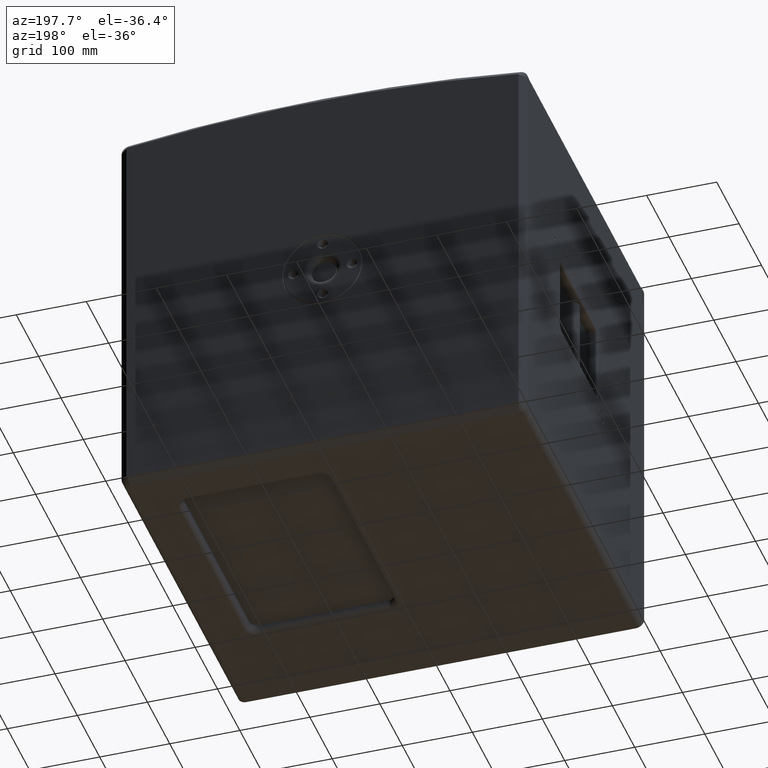
[diagram: clean part render]
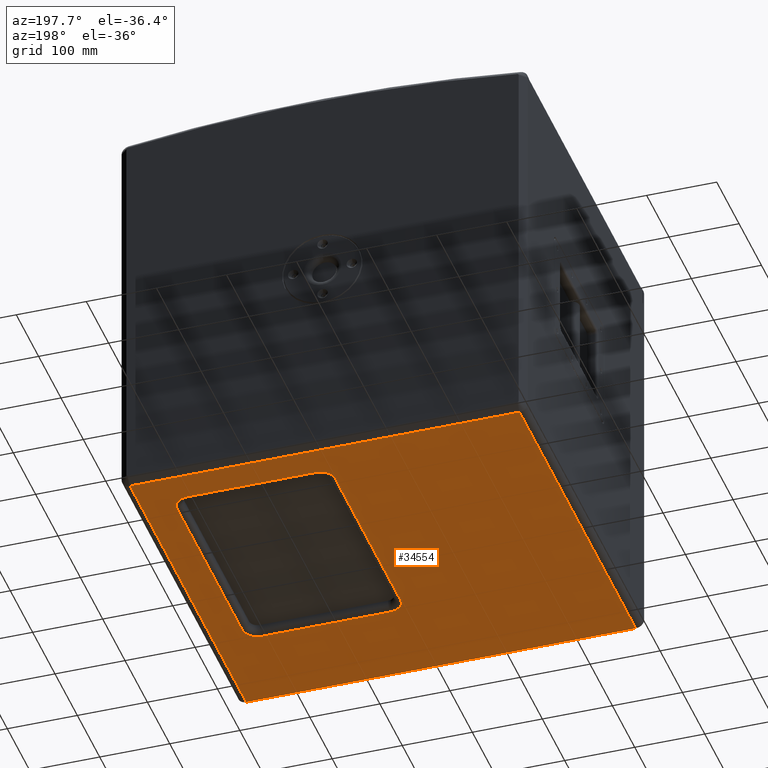
[diagram: same view with one face highlighted and labeled with its STEP entity id]
A machine part, auxiliary view. The second image highlights one B-rep face of the part: STEP entity #34554.
In plain terms, the highlighted planar face has unit normal (-0, 0, 1).
Its self-contained STEP definition (entity closure, byte-faithful):
#648 = LINE ( 'NONE', #17174, #21251 ) ;
#673 = CIRCLE ( 'NONE', #16907, 21.50000000000001066 ) ;
#814 = ORIENTED_EDGE ( 'NONE', *, *, #9605, .T. ) ;
#858 = DIRECTION ( 'NONE',  ( -1.000000000000000000, -0.0000000000000000000, -0.0000000000000000000 ) ) ;
#1023 = CIRCLE ( 'NONE', #10483, 21.49999999999996447 ) ;
#1426 = CARTESIAN_POINT ( 'NONE',  ( 6.999999999999948486, 6.642359976389778191E-16, -297.4999999999999432 ) ) ;
#1481 = EDGE_CURVE ( 'NONE', #36421, #13308, #7807, .T. ) ;
#1950 = CARTESIAN_POINT ( 'NONE',  ( 0.0000000000000000000, 0.0000000000000000000, -297.4999999999999432 ) ) ;
#3244 = ORIENTED_EDGE ( 'NONE', *, *, #8941, .T. ) ;
#3277 = CARTESIAN_POINT ( 'NONE',  ( -277.9999999999999432, 260.0000000000001137, -297.4999999999999432 ) ) ;
#3598 = CARTESIAN_POINT ( 'NONE',  ( 232.9999999999999716, 191.2499999999999716, -297.4999999999999432 ) ) ;
#3703 = VECTOR ( 'NONE', #37309, 1000.000000000000000 ) ;
#5377 = CARTESIAN_POINT ( 'NONE',  ( 6.999999999999929834, 191.2499999999999716, -297.4999999999999432 ) ) ;
#5471 = VERTEX_POINT ( 'NONE', #38561 ) ;
#5900 = CARTESIAN_POINT ( 'NONE',  ( 28.49999999999997158, -101.2500000000000000, -297.4999999999999432 ) ) ;
#6214 = VERTEX_POINT ( 'NONE', #22410 ) ;
#6528 = EDGE_LOOP ( 'NONE', ( #3244, #23569, #11720, #30603 ) ) ;
#7673 = DIRECTION ( 'NONE',  ( -0.0000000000000000000, 0.0000000000000000000, 1.000000000000000000 ) ) ;
#7807 = LINE ( 'NONE', #11607, #3703 ) ;
#8724 = DIRECTION ( 'NONE',  ( -0.0000000000000000000, 0.0000000000000000000, 1.000000000000000000 ) ) ;
#8941 = EDGE_CURVE ( 'NONE', #40649, #36930, #39861, .T. ) ;
#9488 = LINE ( 'NONE', #28991, #21740 ) ;
#9605 = EDGE_CURVE ( 'NONE', #40032, #6214, #39345, .T. ) ;
#10483 = AXIS2_PLACEMENT_3D ( 'NONE', #25058, #8724, #14866 ) ;
#10582 = VERTEX_POINT ( 'NONE', #32096 ) ;
#10869 = CARTESIAN_POINT ( 'NONE',  ( 2.792620415424956935E-14, -122.7500000000000142, -297.4999999999999432 ) ) ;
#11406 = AXIS2_PLACEMENT_3D ( 'NONE', #1950, #7673, #11690 ) ;
#11607 = CARTESIAN_POINT ( 'NONE',  ( -277.9999999999999432, 0.0000000000000000000, -297.4999999999999432 ) ) ;
#11690 = DIRECTION ( 'NONE',  ( 1.000000000000000000, 0.0000000000000000000, 0.0000000000000000000 ) ) ;
#11720 = ORIENTED_EDGE ( 'NONE', *, *, #1481, .T. ) ;
#12446 = DIRECTION ( 'NONE',  ( -0.0000000000000000000, 0.0000000000000000000, 1.000000000000000000 ) ) ;
#12609 = CARTESIAN_POINT ( 'NONE',  ( 28.49999999999994316, 212.7500000000000000, -297.4999999999999432 ) ) ;
#12814 = FACE_BOUND ( 'NONE', #26512, .T. ) ;
#13308 = VERTEX_POINT ( 'NONE', #3277 ) ;
#13798 = PLANE ( 'NONE',  #11406 ) ;
#13982 = CARTESIAN_POINT ( 'NONE',  ( 277.9999999999998863, -260.0000000000000000, -297.4999999999999432 ) ) ;
#14866 = DIRECTION ( 'NONE',  ( 1.000000000000000000, 0.0000000000000000000, 0.0000000000000000000 ) ) ;
#15181 = DIRECTION ( 'NONE',  ( 9.489085680556895541E-17, -1.000000000000000000, 0.0000000000000000000 ) ) ;
#15229 = DIRECTION ( 'NONE',  ( -0.0000000000000000000, 0.0000000000000000000, 1.000000000000000000 ) ) ;
#16907 = AXIS2_PLACEMENT_3D ( 'NONE', #5900, #12446, #28786 ) ;
#16938 = EDGE_CURVE ( 'NONE', #38804, #39025, #37457, .T. ) ;
#17174 = CARTESIAN_POINT ( 'NONE',  ( -0.0000000000000000000, 212.7500000000000000, -297.4999999999999432 ) ) ;
#17236 = ORIENTED_EDGE ( 'NONE', *, *, #36085, .T. ) ;
#17803 = VECTOR ( 'NONE', #30274, 1000.000000000000000 ) ;
#18021 = DIRECTION ( 'NONE',  ( 1.000000000000000000, 0.0000000000000000000, 0.0000000000000000000 ) ) ;
#18228 = VERTEX_POINT ( 'NONE', #34962 ) ;
#18546 = EDGE_CURVE ( 'NONE', #5471, #26559, #39348, .T. ) ;
#20134 = DIRECTION ( 'NONE',  ( 1.000000000000000000, 2.275047181608926165E-16, -0.0000000000000000000 ) ) ;
#20686 = LINE ( 'NONE', #39686, #17803 ) ;
#21251 = VECTOR ( 'NONE', #858, 1000.000000000000000 ) ;
#21740 = VECTOR ( 'NONE', #41997, 1000.000000000000000 ) ;
#22149 = ORIENTED_EDGE ( 'NONE', *, *, #27068, .T. ) ;
#22290 = ORIENTED_EDGE ( 'NONE', *, *, #23525, .T. ) ;
#22410 = CARTESIAN_POINT ( 'NONE',  ( 211.4999999999999716, 212.7500000000000000, -297.4999999999999432 ) ) ;
#22599 = VECTOR ( 'NONE', #18021, 1000.000000000000000 ) ;
#22755 = EDGE_CURVE ( 'NONE', #10582, #40032, #20686, .T. ) ;
#23393 = ORIENTED_EDGE ( 'NONE', *, *, #16938, .T. ) ;
#23465 = DIRECTION ( 'NONE',  ( -0.0000000000000000000, -1.000000000000000000, -0.0000000000000000000 ) ) ;
#23525 = EDGE_CURVE ( 'NONE', #6214, #38804, #648, .T. ) ;
#23569 = ORIENTED_EDGE ( 'NONE', *, *, #27607, .T. ) ;
#25058 = CARTESIAN_POINT ( 'NONE',  ( 211.5000000000000568, -101.2500000000000000, -297.4999999999999432 ) ) ;
#25281 = VECTOR ( 'NONE', #20134, 1000.000000000000000 ) ;
#26507 = CARTESIAN_POINT ( 'NONE',  ( 211.5000000000000568, -122.7499999999999716, -297.4999999999999432 ) ) ;
#26512 = EDGE_LOOP ( 'NONE', ( #17236, #22149, #34259, #41098, #41898, #814, #22290, #23393 ) ) ;
#26559 = VERTEX_POINT ( 'NONE', #26507 ) ;
#27068 = EDGE_CURVE ( 'NONE', #18228, #5471, #673, .T. ) ;
#27331 = DIRECTION ( 'NONE',  ( 1.000000000000000000, 0.0000000000000000000, 0.0000000000000000000 ) ) ;
#27607 = EDGE_CURVE ( 'NONE', #36930, #36421, #9488, .T. ) ;
#28179 = CARTESIAN_POINT ( 'NONE',  ( 211.4999999999999716, 191.2499999999999716, -297.4999999999999432 ) ) ;
#28786 = DIRECTION ( 'NONE',  ( 1.000000000000000000, 0.0000000000000000000, 0.0000000000000000000 ) ) ;
#28991 = CARTESIAN_POINT ( 'NONE',  ( -0.0000000000000000000, -260.0000000000000000, -297.4999999999999432 ) ) ;
#29027 = VECTOR ( 'NONE', #23465, 1000.000000000000000 ) ;
#29866 = CARTESIAN_POINT ( 'NONE',  ( 28.49999999999992895, 191.2499999999999716, -297.4999999999999432 ) ) ;
#29899 = FACE_OUTER_BOUND ( 'NONE', #6528, .T. ) ;
#30016 = CARTESIAN_POINT ( 'NONE',  ( 277.9999999999998863, 0.0000000000000000000, -297.4999999999999432 ) ) ;
#30146 = EDGE_CURVE ( 'NONE', #13308, #40649, #36972, .T. ) ;
#30274 = DIRECTION ( 'NONE',  ( -9.489085680556895541E-17, 1.000000000000000000, -0.0000000000000000000 ) ) ;
#30467 = LINE ( 'NONE', #1426, #37246 ) ;
#30603 = ORIENTED_EDGE ( 'NONE', *, *, #30146, .T. ) ;
#30777 = CARTESIAN_POINT ( 'NONE',  ( -0.0000000000000000000, 260.0000000000001137, -297.4999999999999432 ) ) ;
#32096 = CARTESIAN_POINT ( 'NONE',  ( 233.0000000000000000, -101.2500000000000000, -297.4999999999999432 ) ) ;
#34259 = ORIENTED_EDGE ( 'NONE', *, *, #18546, .T. ) ;
#34554 = ADVANCED_FACE ( 'NONE', ( #12814, #29899 ), #13798, .F. ) ;
#34818 = CARTESIAN_POINT ( 'NONE',  ( -277.9999999999999432, -260.0000000000000000, -297.4999999999999432 ) ) ;
#34962 = CARTESIAN_POINT ( 'NONE',  ( 6.999999999999957367, -101.2500000000000000, -297.4999999999999432 ) ) ;
#35959 = AXIS2_PLACEMENT_3D ( 'NONE', #28179, #15229, #41186 ) ;
#36085 = EDGE_CURVE ( 'NONE', #39025, #18228, #30467, .T. ) ;
#36421 = VERTEX_POINT ( 'NONE', #34818 ) ;
#36510 = DIRECTION ( 'NONE',  ( -0.0000000000000000000, 0.0000000000000000000, 1.000000000000000000 ) ) ;
#36930 = VERTEX_POINT ( 'NONE', #13982 ) ;
#36972 = LINE ( 'NONE', #30777, #22599 ) ;
#37246 = VECTOR ( 'NONE', #15181, 1000.000000000000000 ) ;
#37309 = DIRECTION ( 'NONE',  ( -0.0000000000000000000, 1.000000000000000000, -0.0000000000000000000 ) ) ;
#37457 = CIRCLE ( 'NONE', #38785, 21.50000000000000355 ) ;
#38561 = CARTESIAN_POINT ( 'NONE',  ( 28.49999999999994671, -122.7500000000000142, -297.4999999999999432 ) ) ;
#38785 = AXIS2_PLACEMENT_3D ( 'NONE', #29866, #36510, #27331 ) ;
#38804 = VERTEX_POINT ( 'NONE', #12609 ) ;
#39025 = VERTEX_POINT ( 'NONE', #5377 ) ;
#39345 = CIRCLE ( 'NONE', #35959, 21.50000000000001776 ) ;
#39348 = LINE ( 'NONE', #10869, #25281 ) ;
#39612 = CARTESIAN_POINT ( 'NONE',  ( 277.9999999999998863, 260.0000000000001137, -297.4999999999999432 ) ) ;
#39686 = CARTESIAN_POINT ( 'NONE',  ( 233.0000000000000000, 2.210956963569756694E-14, -297.4999999999999432 ) ) ;
#39861 = LINE ( 'NONE', #30016, #29027 ) ;
#40032 = VERTEX_POINT ( 'NONE', #3598 ) ;
#40649 = VERTEX_POINT ( 'NONE', #39612 ) ;
#41098 = ORIENTED_EDGE ( 'NONE', *, *, #41725, .T. ) ;
#41186 = DIRECTION ( 'NONE',  ( 1.000000000000000000, 0.0000000000000000000, 0.0000000000000000000 ) ) ;
#41725 = EDGE_CURVE ( 'NONE', #26559, #10582, #1023, .T. ) ;
#41898 = ORIENTED_EDGE ( 'NONE', *, *, #22755, .T. ) ;
#41997 = DIRECTION ( 'NONE',  ( -1.000000000000000000, 0.0000000000000000000, 0.0000000000000000000 ) ) ;